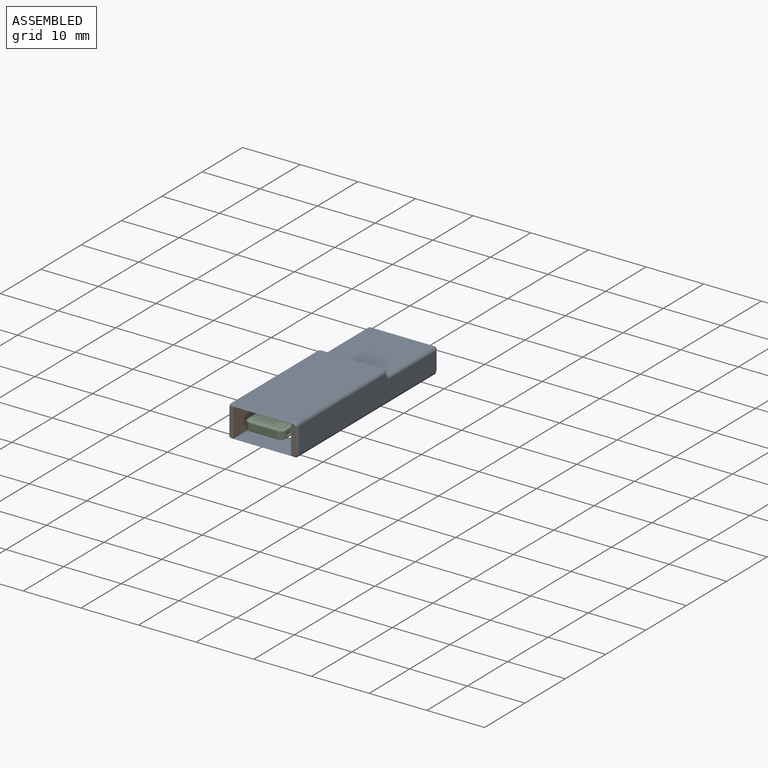
[diagram: assembled view]
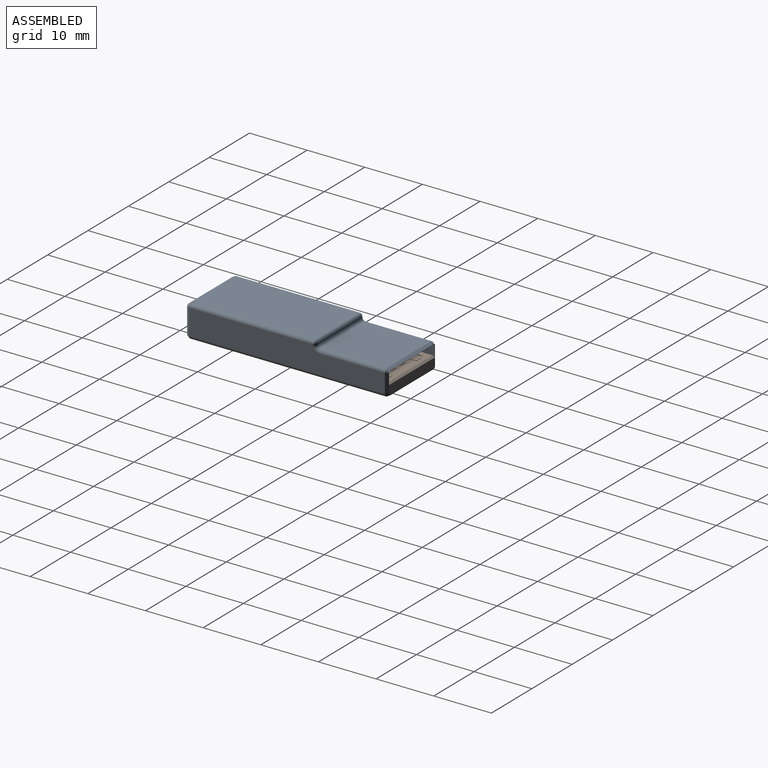
[diagram: assembled view, second angle]
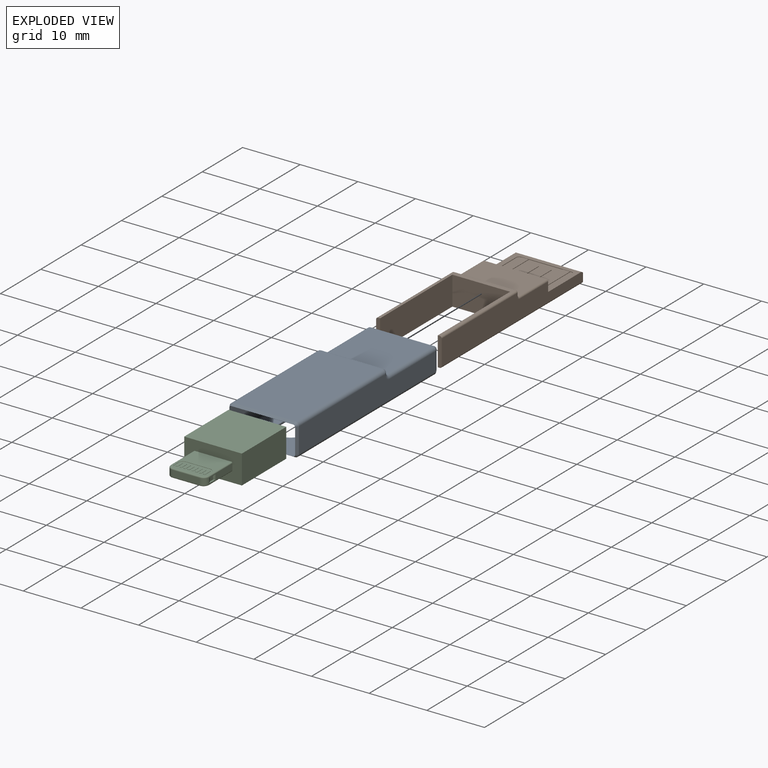
[diagram: exploded view]
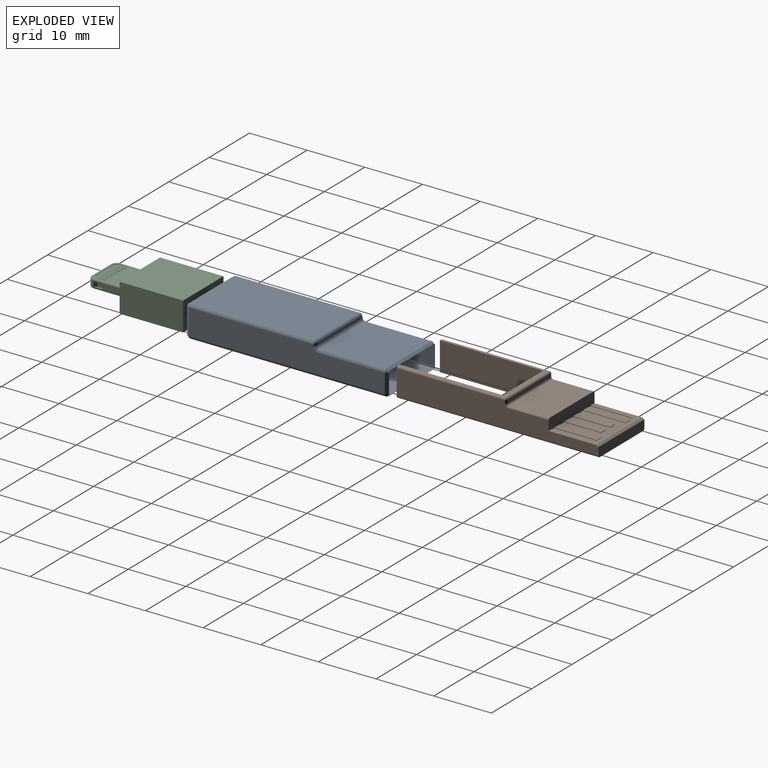
[diagram: exploded view, second angle]
ASSEMBLY  parts=3 mates=2
PART A: 66 faces, bbox 12x35x5.6 mm
  f0: plane 34x10.72mm, normal (0,0,-1), area 310.3mm2, adj f23,f24,f53,f61,f62,f63,f64,f65
  f1: plane 35x10.72mm, normal (0,0,1), area 321.1mm2, adj f2,f6,f44,f45,f62,f63,f64,f65
  f2: plane 11.42x3.92mm, normal (0,1,0), area 0.8mm2, adj f1,f25,f28,f29,f32,f38,f44,f45
  f3: plane 11.5x10.72mm, normal (0,0,1), area 123.3mm2, adj f9,f11,f17,f46
  f4: plane 10.72x0.13mm, normal (0,1,0), area 1.4mm2, adj f9,f10,f13,f22
  f5: plane 21.5x10.72mm, normal (0,0,1), area 230.5mm2, adj f10,f16,f19,f54
  f6: plane 11.42x5.05mm, normal (0,-1,0), area 0.8mm2, adj f1,f27,f28,f29,f37,f40,f44,f45
  f7: plane 34x4.35mm, normal (1,0,0), area 133.9mm2, adj f17,f19,f20,f24,f49,f57
  f8: plane 34x4.35mm, normal (-1,0,0), area 133.9mm2, adj f11,f12,f16,f23,f50,f58
  f9: cylinder r=0.5mm len=10.72mm, axis (1,0,0), area 8.4mm2, adj f3,f4,f12,f20
  f10: cylinder r=0.5mm len=10.72mm, axis (-1,0,0), area 8.4mm2, adj f4,f5,f15,f21
  f11: cylinder r=0.64mm len=11.5mm, axis (0,-1,0), area 11.6mm2, adj f3,f8,f12,f48
  f12: torus R=1.14mm, axis (1,0,0), area 1.2mm2, adj f8,f9,f11,f13,f14
  f13: cylinder r=0.64mm len=0.64mm, axis (0,0,1), area 0.1mm2, adj f4,f12,f15
  f14: bspline ~0.24x0.24mm, area 0mm2, adj f12,f15,f16
  f15: bspline ~0.79x0.64mm, area 0.5mm2, adj f10,f13,f14,f16
  f16: cylinder r=0.64mm len=21.5mm, axis (0,-1,0), area 21.6mm2, adj f5,f8,f14,f15,f56
  f17: cylinder r=0.64mm len=11.5mm, axis (0,1,0), area 11.6mm2, adj f3,f7,f20,f47
  f18: bspline ~0.24x0.24mm, area 0mm2, adj f19,f20,f21
  f19: cylinder r=0.64mm len=21.5mm, axis (0,1,0), area 21.6mm2, adj f5,f7,f18,f21,f55
  f20: torus R=1.14mm, axis (1,0,0), area 1.2mm2, adj f7,f9,f17,f18,f22
  f21: bspline ~0.79x0.64mm, area 0.5mm2, adj f10,f18,f19,f22
  f22: cylinder r=0.64mm len=0.64mm, axis (0,0,1), area 0.1mm2, adj f4,f20,f21
  f23: cylinder r=0.64mm len=34mm, axis (0,1,0), area 34.2mm2, adj f0,f8,f52,f60
  f24: cylinder r=0.64mm len=34mm, axis (0,-1,0), area 34.2mm2, adj f0,f7,f51,f59
  f25: plane 12x10.72mm, normal (0,0,-1), area 128.6mm2, adj f2,f30,f32,f38
  f26: plane 10.72x0.13mm, normal (0,-1,0), area 1.4mm2, adj f30,f31,f34,f43
  f27: plane 22x10.72mm, normal (0,0,-1), area 235.8mm2, adj f6,f31,f37,f40
  f28: plane 35x4.35mm, normal (-1,0,0), area 137.7mm2, adj f2,f6,f38,f40,f41,f45
  f29: plane 35x4.35mm, normal (1,0,0), area 137.7mm2, adj f2,f6,f32,f33,f37,f44
  f30: cylinder r=0.81mm len=10.72mm, axis (1,0,0), area 13.7mm2, adj f25,f26,f33,f41
  f31: cylinder r=0.18mm len=10.72mm, axis (-1,0,0), area 3.1mm2, adj f26,f27,f36,f42
  f32: cylinder r=0.33mm len=12mm, axis (0,-1,0), area 6.1mm2, adj f2,f25,f29,f33
  f33: torus R=1.14mm, axis (1,0,0), area 0.7mm2, adj f29,f30,f32,f34,f35
  f34: cylinder r=0.33mm len=0.32mm, axis (0,0,1), area 0mm2, adj f26,f33,f36
  f35: bspline ~0.12x0.12mm, area 0mm2, adj f33,f36,f37
  f36: bspline ~0.39x0.33mm, area 0.1mm2, adj f31,f34,f35,f37
  f37: cylinder r=0.33mm len=22mm, axis (0,-1,0), area 11.2mm2, adj f6,f27,f29,f35,f36
  f38: cylinder r=0.33mm len=12mm, axis (0,1,0), area 6.1mm2, adj f2,f25,f28,f41
  f39: bspline ~0.12x0.12mm, area 0mm2, adj f40,f41,f42
  f40: cylinder r=0.33mm len=22mm, axis (0,1,0), area 11.2mm2, adj f6,f27,f28,f39,f42
  f41: torus R=1.14mm, axis (1,0,0), area 0.7mm2, adj f28,f30,f38,f39,f43
  f42: bspline ~0.39x0.33mm, area 0.1mm2, adj f31,f39,f40,f43
  f43: cylinder r=0.33mm len=0.32mm, axis (0,0,1), area 0mm2, adj f26,f41,f42
  f44: cylinder r=0.33mm len=35mm, axis (0,1,0), area 17.9mm2, adj f1,f2,f6,f29
  f45: cylinder r=0.33mm len=35mm, axis (0,-1,0), area 17.9mm2, adj f1,f2,f6,f28
  f46: plane 10.72x0.5mm, normal (0,0.5,0.87), area 6.2mm2, adj f2,f3,f47,f48
  f47: cone r=0.35mm half-angle=30deg, axis (0,-1,0), area 0.4mm2, adj f2,f17,f46,f49
  f48: cone r=0.35mm half-angle=30deg, axis (0,-1,0), area 0.4mm2, adj f2,f11,f46,f50
  f49: plane 3.22x0.5mm, normal (0.87,0.5,0), area 1.9mm2, adj f2,f7,f47,f51
  f50: plane 3.22x0.5mm, normal (-0.87,0.5,0), area 1.9mm2, adj f2,f8,f48,f52
  f51: cone r=0.35mm half-angle=30deg, axis (0,-1,0), area 0.4mm2, adj f2,f24,f49,f53
  f52: cone r=0.35mm half-angle=30deg, axis (0,-1,0), area 0.4mm2, adj f2,f23,f50,f53
  f53: plane 10.72x0.5mm, normal (0,0.5,-0.87), area 6.2mm2, adj f0,f2,f51,f52
  f54: plane 10.72x0.5mm, normal (0,-0.5,0.87), area 6.2mm2, adj f5,f6,f55,f56
  f55: cone r=0.35mm half-angle=30deg, axis (0,1,0), area 0.4mm2, adj f6,f19,f54,f57
  f56: cone r=0.35mm half-angle=30deg, axis (0,1,0), area 0.4mm2, adj f6,f16,f54,f58
  f57: plane 4.35x0.5mm, normal (0.87,-0.5,0), area 2.5mm2, adj f6,f7,f55,f59
  f58: plane 4.35x0.5mm, normal (-0.87,-0.5,0), area 2.5mm2, adj f6,f8,f56,f60
  f59: cone r=0.35mm half-angle=30deg, axis (0,1,0), area 0.4mm2, adj f6,f24,f57,f61
  f60: cone r=0.35mm half-angle=30deg, axis (0,1,0), area 0.4mm2, adj f6,f23,f58,f61
  f61: plane 10.72x0.5mm, normal (0,-0.5,-0.87), area 6.2mm2, adj f0,f6,f59,f60
  f62: cylinder r=2.5mm len=5mm, axis (0,0,-1), area 2.5mm2, adj f0,f1,f63,f64
  f63: plane 6.9x0.32mm, normal (-1,0,0), area 2.2mm2, adj f0,f1,f62,f65
  f64: plane 6.9x0.32mm, normal (1,0,0), area 2.2mm2, adj f0,f1,f62,f65
  f65: cylinder r=2.5mm len=5mm, axis (0,0,-1), area 2.5mm2, adj f0,f1,f63,f64
PART B: 56 faces, bbox 11.4x35x5 mm
  f0: plane 5x0.69mm, normal (0,1,0), area 3.4mm2, adj f1,f2,f9,f40,f49,f54
  f1: plane 35x10.72mm, normal (0,0,-1), area 196.2mm2, adj f0,f12,f13,f39,f40,f41,f54,f55
  f2: plane 18.68x10.72mm, normal (0,0,1), area 21.2mm2, adj f0,f13,f39,f40,f41,f43,f44,f49
  f3: plane 10.72x7.03mm, normal (0,0,1), area 75.3mm2, adj f15,f42,f48,f53
  f4: plane 9.7x7.5mm, normal (0,0,1), area 39.5mm2, adj f5,f6,f7,f8,f16,f17,f18,f19
  f5: plane 0.66x0.11mm, normal (0,-1,0), area 0.1mm2, adj f4,f15,f21,f36
  f6: plane 1.31x0.11mm, normal (0,-1,0), area 0.1mm2, adj f4,f15,f32,f35
  f7: plane 1.31x0.11mm, normal (0,-1,0), area 0.1mm2, adj f4,f15,f23,f29
  f8: plane 1.01x0.11mm, normal (0,-1,0), area 0.1mm2, adj f4,f15,f25,f31
  f9: plane 35x4.35mm, normal (-1,0,0), area 119.8mm2, adj f0,f11,f12,f14,f15,f49,f51,f52
  f10: plane 35x4.35mm, normal (1,0,0), area 119.8mm2, adj f11,f12,f13,f14,f15,f44,f46,f47
  f11: plane 11.37x8.25mm, normal (0,0,1), area 21.1mm2, adj f9,f10,f14,f15,f17,f18,f19,f20
  f12: plane 11.37x1.69mm, normal (0,-1,0), area 19.2mm2, adj f1,f9,f10,f14,f54,f55
  f13: plane 5x0.69mm, normal (0,1,0), area 3.4mm2, adj f1,f2,f10,f39,f44,f55
  f14: plane 11.37x0.4mm, normal (0,-0.5,0.87), area 5.3mm2, adj f9,f10,f11,f12
  f15: plane 11.38x1.96mm, normal (0,-1,0), area 22.1mm2, adj f3,f5,f6,f7,f8,f9,f10,f11
  f16: plane 0.66x0.11mm, normal (0,-1,0), area 0.1mm2, adj f4,f15,f17,f27
  f17: plane 7x0.1mm, normal (1,0,0), area 0.7mm2, adj f4,f11,f16,f18
  f18: cylinder r=0.5mm len=0.5mm, axis (0,0,1), area 0.1mm2, adj f4,f11,f17,f19
  f19: plane 8.7x0.1mm, normal (0,1,0), area 0.9mm2, adj f4,f11,f18,f20
  f20: cylinder r=0.5mm len=0.5mm, axis (0,0,1), area 0.1mm2, adj f4,f11,f19,f21
  f21: plane 7x0.1mm, normal (-1,0,0), area 0.7mm2, adj f4,f5,f11,f20
  f22: plane 6.42x1.2mm, normal (0,0,1), area 7.7mm2, adj f15,f23,f24,f25
  f23: plane 6.41x0.1mm, normal (-1,0,0), area 0.6mm2, adj f4,f7,f22,f24
  f24: plane 1.2x0.1mm, normal (0,-1,0), area 0.1mm2, adj f4,f22,f23,f25
  f25: plane 6.41x0.1mm, normal (1,0,0), area 0.6mm2, adj f4,f8,f22,f24
  f26: plane 7.42x1.2mm, normal (0,0,1), area 8.9mm2, adj f15,f27,f28,f29
  f27: plane 7.41x0.1mm, normal (-1,0,0), area 0.7mm2, adj f4,f16,f26,f28
  f28: plane 1.2x0.1mm, normal (0,-1,0), area 0.1mm2, adj f4,f26,f27,f29
  f29: plane 7.41x0.1mm, normal (1,0,0), area 0.7mm2, adj f4,f7,f26,f28
  f30: plane 6.42x1.2mm, normal (0,0,1), area 7.7mm2, adj f15,f31,f32,f33
  f31: plane 6.41x0.1mm, normal (-1,0,0), area 0.6mm2, adj f4,f8,f30,f33
  f32: plane 6.41x0.1mm, normal (1,0,0), area 0.6mm2, adj f4,f6,f30,f33
  f33: plane 1.2x0.1mm, normal (0,-1,0), area 0.1mm2, adj f4,f30,f31,f32
  f34: plane 7.42x1.2mm, normal (0,0,1), area 8.9mm2, adj f15,f35,f36,f37
  f35: plane 7.41x0.1mm, normal (-1,0,0), area 0.7mm2, adj f4,f6,f34,f37
  f36: plane 7.41x0.1mm, normal (1,0,0), area 0.7mm2, adj f4,f5,f34,f37
  f37: plane 1.2x0.1mm, normal (0,-1,0), area 0.1mm2, adj f4,f34,f35,f36
  f38: plane 10.72x0.48mm, normal (0,-1,0), area 5.1mm2, adj f42,f43,f46,f51
  f39: plane 17.9x5mm, normal (-1,0,0), area 89.5mm2, adj f1,f2,f13,f41
  f40: plane 17.9x5mm, normal (1,0,0), area 89.5mm2, adj f0,f1,f2,f41
  f41: plane 10x5mm, normal (0,1,0), area 50mm2, adj f1,f2,f39,f40
  f42: cylinder r=0.33mm len=10.72mm, axis (1,0,0), area 5.5mm2, adj f3,f38,f47,f52
  f43: cylinder r=0.33mm len=10.72mm, axis (-1,0,0), area 5.5mm2, adj f2,f38,f45,f50
  f44: cylinder r=0.33mm len=18.68mm, axis (0,-1,0), area 9.5mm2, adj f2,f10,f13,f45
  f45: sphere r=0.33mm, area 0.2mm2, adj f43,f44,f46
  f46: cylinder r=0.33mm len=0.48mm, axis (0,0,1), area 0.2mm2, adj f10,f38,f45,f47
  f47: torus R=0.65mm, axis (-1,0,0), area 0.4mm2, adj f10,f42,f46,f48
  f48: cylinder r=0.33mm len=7.03mm, axis (0,-1,0), area 3.6mm2, adj f3,f10,f15,f47
  f49: cylinder r=0.33mm len=18.68mm, axis (0,1,0), area 9.5mm2, adj f0,f2,f9,f50
  f50: sphere r=0.33mm, area 0.2mm2, adj f43,f49,f51
  f51: cylinder r=0.33mm len=0.48mm, axis (0,0,-1), area 0.2mm2, adj f9,f38,f50,f52
  f52: torus R=0.65mm, axis (-1,0,0), area 0.4mm2, adj f9,f42,f51,f53
  f53: cylinder r=0.33mm len=7.03mm, axis (0,1,0), area 3.6mm2, adj f3,f9,f15,f52
  f54: cylinder r=0.33mm len=35mm, axis (0,-1,0), area 17.9mm2, adj f0,f1,f9,f12
  f55: cylinder r=0.33mm len=35mm, axis (0,1,0), area 17.9mm2, adj f1,f10,f12,f13
PART C: 209 faces, bbox 10x17.8x5.5 mm
  f0: cylinder r=2.5mm len=5mm, axis (0,0,1), area 6.7mm2, adj f1,f2,f3,f197,f199,f200,f201,f202
  f1: plane 4.94x0.8mm, normal (0,0,-1), area 3.8mm2, adj f0,f202,f208
  f2: plane 3x0.5mm, normal (0,0,-1), area 1mm2, adj f0,f204
  f3: plane 4.94x0.8mm, normal (0,0,-1), area 3.8mm2, adj f0,f201,f205
  f4: plane 5.7x1.1mm, normal (1,0,0), area 5.1mm2, adj f8,f173,f182,f183,f184,f185,f186,f195
  f5: plane 6.5x6.3mm, normal (0,0,-1), area 26.9mm2, adj f20,f21,f22,f23,f24,f25,f26,f27
  f6: plane 6.5x6.3mm, normal (0,0,1), area 26.9mm2, adj f11,f12,f13,f14,f15,f16,f17,f18
  f7: plane 5.7x1.1mm, normal (-1,0,0), area 5.1mm2, adj f10,f177,f178,f189,f191,f192,f195
  f8: cylinder r=1mm len=1.1mm, axis (0,0,-1), area 1.7mm2, adj f4,f9,f174,f181
  f9: plane 4.7x1.1mm, normal (0,1,0), area 5.2mm2, adj f8,f10,f175,f180
  f10: cylinder r=1mm len=1.1mm, axis (0,0,-1), area 1.7mm2, adj f7,f9,f176,f179,f188
  f11: plane 1x0.05mm, normal (-1,0,0), area 0.1mm2, adj f6,f12,f18,f19
  f12: cylinder r=0.75mm len=0.75mm, axis (0,0,1), area 0.1mm2, adj f6,f11,f13,f19
  f13: plane 4.2x0.05mm, normal (0,-1,0), area 0.2mm2, adj f6,f12,f14,f19
  f14: cylinder r=0.75mm len=0.75mm, axis (0,0,1), area 0.1mm2, adj f6,f13,f15,f19
  f15: plane 1x0.05mm, normal (1,0,0), area 0.1mm2, adj f6,f14,f16,f19
  f16: cylinder r=0.75mm len=0.75mm, axis (0,0,1), area 0.1mm2, adj f6,f15,f17,f19
  f17: plane 4.2x0.05mm, normal (0,1,0), area 0.2mm2, adj f6,f16,f18,f19
  f18: cylinder r=0.75mm len=0.75mm, axis (0,0,1), area 0.1mm2, adj f6,f11,f17,f19
  f19: plane 5.7x2.5mm, normal (0,0,1), area 9mm2, adj f11,f12,f13,f14,f15,f16,f17,f18
  f20: plane 1x0.05mm, normal (1,0,0), area 0mm2, adj f5,f21,f27,f28
  f21: cylinder r=0.75mm len=0.75mm, axis (0,0,-1), area 0.1mm2, adj f5,f20,f22,f28
  f22: plane 4.2x0.05mm, normal (0,-1,0), area 0.2mm2, adj f5,f21,f23,f28
  f23: cylinder r=0.75mm len=0.75mm, axis (0,0,-1), area 0.1mm2, adj f5,f22,f24,f28
  f24: plane 1x0.05mm, normal (-1,0,0), area 0mm2, adj f5,f23,f25,f28
  f25: cylinder r=0.75mm len=0.75mm, axis (0,0,-1), area 0.1mm2, adj f5,f24,f26,f28
  f26: plane 4.2x0.05mm, normal (0,1,0), area 0.2mm2, adj f5,f25,f27,f28
  f27: cylinder r=0.75mm len=0.75mm, axis (0,0,-1), area 0.1mm2, adj f5,f20,f26,f28
  f28: plane 5.7x2.5mm, normal (0,0,-1), area 9mm2, adj f20,f21,f22,f23,f24,f25,f26,f27
  f29: plane 1.5x0.42mm, normal (0,0,-1), area 0.6mm2, adj f30,f31,f32,f33,f34,f35,f36,f37
  f30: cylinder r=0.2mm len=0.2mm, axis (0,0,1), area 0mm2, adj f28,f29,f31,f32
  f31: plane 0.05x0.02mm, normal (0,1,0), area 0mm2, adj f28,f29,f30,f34
  f32: plane 1.1x0.05mm, normal (-1,0,0), area 0.1mm2, adj f28,f29,f30,f33
  f33: cylinder r=0.2mm len=0.2mm, axis (0,0,1), area 0mm2, adj f28,f29,f32,f35
  f34: cylinder r=0.2mm len=0.2mm, axis (0,0,1), area 0mm2, adj f28,f29,f31,f36
  f35: plane 0.05x0.02mm, normal (0,-1,0), area 0mm2, adj f28,f29,f33,f37
  f36: plane 1.1x0.05mm, normal (1,0,0), area 0.1mm2, adj f28,f29,f34,f37
  f37: cylinder r=0.2mm len=0.2mm, axis (0,0,1), area 0mm2, adj f28,f29,f35,f36
  f38: cylinder r=0.2mm len=0.2mm, axis (0,0,1), area 0mm2, adj f19,f39,f40,f46
  f39: plane 1.1x0.05mm, normal (1,0,0), area 0.1mm2, adj f19,f38,f41,f46
  f40: plane 0.05x0.02mm, normal (0,-1,0), area 0mm2, adj f19,f38,f42,f46
  f41: cylinder r=0.2mm len=0.2mm, axis (0,0,1), area 0mm2, adj f19,f39,f44,f46
  f42: cylinder r=0.2mm len=0.2mm, axis (0,0,1), area 0mm2, adj f19,f40,f43,f46
  f43: plane 1.1x0.05mm, normal (-1,0,0), area 0.1mm2, adj f19,f42,f45,f46
  f44: plane 0.05x0.02mm, normal (0,1,0), area 0mm2, adj f19,f41,f45,f46
  f45: cylinder r=0.2mm len=0.2mm, axis (0,0,1), area 0mm2, adj f19,f43,f44,f46
  f46: plane 1.5x0.42mm, normal (0,0,1), area 0.6mm2, adj f38,f39,f40,f41,f42,f43,f44,f45
  f47: plane 1.5x0.42mm, normal (0,0,-1), area 0.6mm2, adj f48,f49,f50,f51,f52,f53,f54,f55
  f48: plane 1.1x0.05mm, normal (1,0,0), area 0.1mm2, adj f28,f47,f49,f50
  f49: cylinder r=0.2mm len=0.2mm, axis (0,0,1), area 0mm2, adj f28,f47,f48,f52
  f50: cylinder r=0.2mm len=0.2mm, axis (0,0,1), area 0mm2, adj f28,f47,f48,f51
  f51: plane 0.05x0.02mm, normal (0,1,0), area 0mm2, adj f28,f47,f50,f53
  f52: plane 0.05x0.02mm, normal (0,-1,0), area 0mm2, adj f28,f47,f49,f54
  f53: cylinder r=0.2mm len=0.2mm, axis (0,0,1), area 0mm2, adj f28,f47,f51,f55
  f54: cylinder r=0.2mm len=0.2mm, axis (0,0,1), area 0mm2, adj f28,f47,f52,f55
  f55: plane 1.1x0.05mm, normal (-1,0,0), area 0.1mm2, adj f28,f47,f53,f54
  f56: plane 1.1x0.05mm, normal (-1,0,0), area 0.1mm2, adj f19,f57,f58,f64
  f57: cylinder r=0.2mm len=0.2mm, axis (0,0,1), area 0mm2, adj f19,f56,f59,f64
  f58: cylinder r=0.2mm len=0.2mm, axis (0,0,1), area 0mm2, adj f19,f56,f60,f64
  f59: plane 0.05x0.02mm, normal (0,-1,0), area 0mm2, adj f19,f57,f62,f64
  f60: plane 0.05x0.02mm, normal (0,1,0), area 0mm2, adj f19,f58,f61,f64
  f61: cylinder r=0.2mm len=0.2mm, axis (0,0,1), area 0mm2, adj f19,f60,f63,f64
  f62: cylinder r=0.2mm len=0.2mm, axis (0,0,1), area 0mm2, adj f19,f59,f63,f64
  f63: plane 1.1x0.05mm, normal (1,0,0), area 0.1mm2, adj f19,f61,f62,f64
  f64: plane 1.5x0.42mm, normal (0,0,1), area 0.6mm2, adj f56,f57,f58,f59,f60,f61,f62,f63
  f65: plane 1.5x0.42mm, normal (0,0,-1), area 0.6mm2, adj f66,f67,f68,f69,f70,f71,f72,f73
  f66: plane 1.1x0.05mm, normal (1,0,0), area 0.1mm2, adj f28,f65,f67,f68
  f67: cylinder r=0.2mm len=0.2mm, axis (0,0,1), area 0mm2, adj f28,f65,f66,f70
  f68: cylinder r=0.2mm len=0.2mm, axis (0,0,1), area 0mm2, adj f28,f65,f66,f69
  f69: plane 0.05x0.02mm, normal (0,1,0), area 0mm2, adj f28,f65,f68,f71
  f70: plane 0.05x0.02mm, normal (0,-1,0), area 0mm2, adj f28,f65,f67,f72
  f71: cylinder r=0.2mm len=0.2mm, axis (0,0,1), area 0mm2, adj f28,f65,f69,f73
  f72: cylinder r=0.2mm len=0.2mm, axis (0,0,1), area 0mm2, adj f28,f65,f70,f73
  f73: plane 1.1x0.05mm, normal (-1,0,0), area 0.1mm2, adj f28,f65,f71,f72
  f74: plane 1.1x0.05mm, normal (-1,0,0), area 0.1mm2, adj f19,f75,f76,f82
  f75: cylinder r=0.2mm len=0.2mm, axis (0,0,1), area 0mm2, adj f19,f74,f77,f82
  f76: cylinder r=0.2mm len=0.2mm, axis (0,0,1), area 0mm2, adj f19,f74,f78,f82
  f77: plane 0.05x0.02mm, normal (0,-1,0), area 0mm2, adj f19,f75,f80,f82
  f78: plane 0.05x0.02mm, normal (0,1,0), area 0mm2, adj f19,f76,f79,f82
  f79: cylinder r=0.2mm len=0.2mm, axis (0,0,1), area 0mm2, adj f19,f78,f81,f82
  f80: cylinder r=0.2mm len=0.2mm, axis (0,0,1), area 0mm2, adj f19,f77,f81,f82
  f81: plane 1.1x0.05mm, normal (1,0,0), area 0.1mm2, adj f19,f79,f80,f82
  f82: plane 1.5x0.42mm, normal (0,0,1), area 0.6mm2, adj f74,f75,f76,f77,f78,f79,f80,f81
  f83: plane 1.5x0.42mm, normal (0,0,-1), area 0.6mm2, adj f84,f85,f86,f87,f88,f89,f90,f91
  f84: plane 1.1x0.05mm, normal (1,0,0), area 0.1mm2, adj f28,f83,f85,f86
  f85: cylinder r=0.2mm len=0.2mm, axis (0,0,1), area 0mm2, adj f28,f83,f84,f88
  f86: cylinder r=0.2mm len=0.2mm, axis (0,0,1), area 0mm2, adj f28,f83,f84,f87
  f87: plane 0.05x0.02mm, normal (0,1,0), area 0mm2, adj f28,f83,f86,f89
  f88: plane 0.05x0.02mm, normal (0,-1,0), area 0mm2, adj f28,f83,f85,f90
  f89: cylinder r=0.2mm len=0.2mm, axis (0,0,1), area 0mm2, adj f28,f83,f87,f91
  f90: cylinder r=0.2mm len=0.2mm, axis (0,0,1), area 0mm2, adj f28,f83,f88,f91
  f91: plane 1.1x0.05mm, normal (-1,0,0), area 0.1mm2, adj f28,f83,f89,f90
  f92: plane 1.1x0.05mm, normal (-1,0,0), area 0.1mm2, adj f19,f93,f94,f100
  f93: cylinder r=0.2mm len=0.2mm, axis (0,0,1), area 0mm2, adj f19,f92,f95,f100
  f94: cylinder r=0.2mm len=0.2mm, axis (0,0,1), area 0mm2, adj f19,f92,f96,f100
  f95: plane 0.05x0.02mm, normal (0,-1,0), area 0mm2, adj f19,f93,f98,f100
  f96: plane 0.05x0.02mm, normal (0,1,0), area 0mm2, adj f19,f94,f97,f100
  f97: cylinder r=0.2mm len=0.2mm, axis (0,0,1), area 0mm2, adj f19,f96,f99,f100
  f98: cylinder r=0.2mm len=0.2mm, axis (0,0,1), area 0mm2, adj f19,f95,f99,f100
  f99: plane 1.1x0.05mm, normal (1,0,0), area 0.1mm2, adj f19,f97,f98,f100
  f100: plane 1.5x0.42mm, normal (0,0,1), area 0.6mm2, adj f92,f93,f94,f95,f96,f97,f98,f99
  f101: plane 1.5x0.42mm, normal (0,0,-1), area 0.6mm2, adj f102,f103,f104,f105,f106,f107,f108,f109
  f102: plane 1.1x0.05mm, normal (1,0,0), area 0.1mm2, adj f28,f101,f103,f104
  f103: cylinder r=0.2mm len=0.2mm, axis (0,0,1), area 0mm2, adj f28,f101,f102,f106
  f104: cylinder r=0.2mm len=0.2mm, axis (0,0,1), area 0mm2, adj f28,f101,f102,f105
  f105: plane 0.05x0.02mm, normal (0,1,0), area 0mm2, adj f28,f101,f104,f107
  f106: plane 0.05x0.02mm, normal (0,-1,0), area 0mm2, adj f28,f101,f103,f108
  f107: cylinder r=0.2mm len=0.2mm, axis (0,0,1), area 0mm2, adj f28,f101,f105,f109
  f108: cylinder r=0.2mm len=0.2mm, axis (0,0,1), area 0mm2, adj f28,f101,f106,f109
  f109: plane 1.1x0.05mm, normal (-1,0,0), area 0.1mm2, adj f28,f101,f107,f108
  f110: plane 1.1x0.05mm, normal (-1,0,0), area 0.1mm2, adj f19,f111,f112,f118
  f111: cylinder r=0.2mm len=0.2mm, axis (0,0,1), area 0mm2, adj f19,f110,f113,f118
  f112: cylinder r=0.2mm len=0.2mm, axis (0,0,1), area 0mm2, adj f19,f110,f114,f118
  f113: plane 0.05x0.02mm, normal (0,-1,0), area 0mm2, adj f19,f111,f116,f118
  f114: plane 0.05x0.02mm, normal (0,1,0), area 0mm2, adj f19,f112,f115,f118
  f115: cylinder r=0.2mm len=0.2mm, axis (0,0,1), area 0mm2, adj f19,f114,f117,f118
  f116: cylinder r=0.2mm len=0.2mm, axis (0,0,1), area 0mm2, adj f19,f113,f117,f118
  f117: plane 1.1x0.05mm, normal (1,0,0), area 0.1mm2, adj f19,f115,f116,f118
  f118: plane 1.5x0.42mm, normal (0,0,1), area 0.6mm2, adj f110,f111,f112,f113,f114,f115,f116,f117
  f119: plane 1.5x0.42mm, normal (0,0,-1), area 0.6mm2, adj f120,f121,f122,f123,f124,f125,f126,f127
  f120: plane 1.1x0.05mm, normal (1,0,0), area 0.1mm2, adj f28,f119,f121,f122
  f121: cylinder r=0.2mm len=0.2mm, axis (0,0,1), area 0mm2, adj f28,f119,f120,f124
  f122: cylinder r=0.2mm len=0.2mm, axis (0,0,1), area 0mm2, adj f28,f119,f120,f123
  f123: plane 0.05x0.02mm, normal (0,1,0), area 0mm2, adj f28,f119,f122,f125
  f124: plane 0.05x0.02mm, normal (0,-1,0), area 0mm2, adj f28,f119,f121,f126
  f125: cylinder r=0.2mm len=0.2mm, axis (0,0,1), area 0mm2, adj f28,f119,f123,f127
  f126: cylinder r=0.2mm len=0.2mm, axis (0,0,1), area 0mm2, adj f28,f119,f124,f127
  f127: plane 1.1x0.05mm, normal (-1,0,0), area 0.1mm2, adj f28,f119,f125,f126
  f128: plane 1.1x0.05mm, normal (-1,0,0), area 0.1mm2, adj f19,f129,f130,f136
  f129: cylinder r=0.2mm len=0.2mm, axis (0,0,1), area 0mm2, adj f19,f128,f131,f136
  f130: cylinder r=0.2mm len=0.2mm, axis (0,0,1), area 0mm2, adj f19,f128,f132,f136
  f131: plane 0.05x0.02mm, normal (0,-1,0), area 0mm2, adj f19,f129,f134,f136
  f132: plane 0.05x0.02mm, normal (0,1,0), area 0mm2, adj f19,f130,f133,f136
  f133: cylinder r=0.2mm len=0.2mm, axis (0,0,1), area 0mm2, adj f19,f132,f135,f136
  f134: cylinder r=0.2mm len=0.2mm, axis (0,0,1), area 0mm2, adj f19,f131,f135,f136
  f135: plane 1.1x0.05mm, normal (1,0,0), area 0.1mm2, adj f19,f133,f134,f136
  f136: plane 1.5x0.42mm, normal (0,0,1), area 0.6mm2, adj f128,f129,f130,f131,f132,f133,f134,f135
  f137: plane 1.5x0.42mm, normal (0,0,-1), area 0.6mm2, adj f138,f139,f140,f141,f142,f143,f144,f145
  f138: plane 1.1x0.05mm, normal (1,0,0), area 0.1mm2, adj f28,f137,f139,f140
  f139: cylinder r=0.2mm len=0.2mm, axis (0,0,1), area 0mm2, adj f28,f137,f138,f142
  f140: cylinder r=0.2mm len=0.2mm, axis (0,0,1), area 0mm2, adj f28,f137,f138,f141
  f141: plane 0.05x0.02mm, normal (0,1,0), area 0mm2, adj f28,f137,f140,f143
  f142: plane 0.05x0.02mm, normal (0,-1,0), area 0mm2, adj f28,f137,f139,f144
  f143: cylinder r=0.2mm len=0.2mm, axis (0,0,1), area 0mm2, adj f28,f137,f141,f145
  f144: cylinder r=0.2mm len=0.2mm, axis (0,0,1), area 0mm2, adj f28,f137,f142,f145
  f145: plane 1.1x0.05mm, normal (-1,0,0), area 0.1mm2, adj f28,f137,f143,f144
  f146: plane 1.1x0.05mm, normal (-1,0,0), area 0.1mm2, adj f19,f147,f148,f154
  f147: cylinder r=0.2mm len=0.2mm, axis (0,0,1), area 0mm2, adj f19,f146,f149,f154
  f148: cylinder r=0.2mm len=0.2mm, axis (0,0,1), area 0mm2, adj f19,f146,f150,f154
  f149: plane 0.05x0.02mm, normal (0,-1,0), area 0mm2, adj f19,f147,f152,f154
  f150: plane 0.05x0.02mm, normal (0,1,0), area 0mm2, adj f19,f148,f151,f154
  f151: cylinder r=0.2mm len=0.2mm, axis (0,0,1), area 0mm2, adj f19,f150,f153,f154
  f152: cylinder r=0.2mm len=0.2mm, axis (0,0,1), area 0mm2, adj f19,f149,f153,f154
  f153: plane 1.1x0.05mm, normal (1,0,0), area 0.1mm2, adj f19,f151,f152,f154
  f154: plane 1.5x0.42mm, normal (0,0,1), area 0.6mm2, adj f146,f147,f148,f149,f150,f151,f152,f153
  f155: plane 1.5x0.42mm, normal (0,0,-1), area 0.6mm2, adj f156,f157,f158,f159,f160,f161,f162,f163
  f156: plane 1.1x0.05mm, normal (1,0,0), area 0.1mm2, adj f28,f155,f157,f158
  f157: cylinder r=0.2mm len=0.2mm, axis (0,0,1), area 0mm2, adj f28,f155,f156,f160
  f158: cylinder r=0.2mm len=0.2mm, axis (0,0,1), area 0mm2, adj f28,f155,f156,f159
  f159: plane 0.05x0.02mm, normal (0,1,0), area 0mm2, adj f28,f155,f158,f161
  f160: plane 0.05x0.02mm, normal (0,-1,0), area 0mm2, adj f28,f155,f157,f162
  f161: cylinder r=0.2mm len=0.2mm, axis (0,0,1), area 0mm2, adj f28,f155,f159,f163
  f162: cylinder r=0.2mm len=0.2mm, axis (0,0,1), area 0mm2, adj f28,f155,f160,f163
  f163: plane 1.1x0.05mm, normal (-1,0,0), area 0.1mm2, adj f28,f155,f161,f162
  f164: plane 1.1x0.05mm, normal (-1,0,0), area 0.1mm2, adj f19,f165,f166,f172
  f165: cylinder r=0.2mm len=0.2mm, axis (0,0,1), area 0mm2, adj f19,f164,f167,f172
  f166: cylinder r=0.2mm len=0.2mm, axis (0,0,1), area 0mm2, adj f19,f164,f168,f172
  f167: plane 0.05x0.02mm, normal (0,-1,0), area 0mm2, adj f19,f165,f170,f172
  f168: plane 0.05x0.02mm, normal (0,1,0), area 0mm2, adj f19,f166,f169,f172
  f169: cylinder r=0.2mm len=0.2mm, axis (0,0,1), area 0mm2, adj f19,f168,f171,f172
  f170: cylinder r=0.2mm len=0.2mm, axis (0,0,1), area 0mm2, adj f19,f167,f171,f172
  f171: plane 1.1x0.05mm, normal (1,0,0), area 0.1mm2, adj f19,f169,f170,f172
  f172: plane 1.5x0.42mm, normal (0,0,1), area 0.6mm2, adj f164,f165,f166,f167,f168,f169,f170,f171
  f173: cylinder r=0.2mm len=5.7mm, axis (0,1,0), area 1.8mm2, adj f4,f5,f174,f195
  f174: torus R=0.8mm, axis (0,0,1), area 0.5mm2, adj f5,f8,f173,f175
  f175: cylinder r=0.2mm len=4.7mm, axis (-1,0,0), area 1.5mm2, adj f5,f9,f174,f176
  f176: torus R=0.8mm, axis (0,0,1), area 0.5mm2, adj f5,f10,f175,f177
  f177: cylinder r=0.2mm len=5.7mm, axis (0,-1,0), area 1.8mm2, adj f5,f7,f176,f195
  f178: cylinder r=0.2mm len=5.7mm, axis (0,1,0), area 1.8mm2, adj f6,f7,f179,f195
  f179: torus R=0.8mm, axis (0,0,1), area 0.5mm2, adj f6,f10,f178,f180
  f180: cylinder r=0.2mm len=4.7mm, axis (1,0,0), area 1.5mm2, adj f6,f9,f179,f181
  f181: torus R=0.8mm, axis (0,0,1), area 0.5mm2, adj f6,f8,f180,f182
  f182: cylinder r=0.2mm len=5.7mm, axis (0,-1,0), area 1.8mm2, adj f4,f6,f181,f195
  f183: plane 0.8x0.46mm, normal (0.89,-0.45,0), area 0.4mm2, adj f4,f185,f186,f187
  f184: plane 0.8x0.23mm, normal (0.71,0.71,0), area 0.3mm2, adj f4,f185,f186,f187
  f185: plane 1.44x0.23mm, normal (0,0,1), area 0.3mm2, adj f4,f183,f184,f187
  f186: plane 1.44x0.23mm, normal (0,0,-1), area 0.3mm2, adj f4,f183,f184,f187
  f187: plane 0.8x0.75mm, normal (1,0,0), area 0.6mm2, adj f183,f184,f185,f186
  f188: plane 0.8x0.5mm, normal (-0.89,-0.45,0), area 0.4mm2, adj f10,f190,f191,f192
  f189: plane 0.8x0.25mm, normal (-0.71,0.71,0), area 0.3mm2, adj f7,f190,f191,f192
  f190: plane 0.8x0.75mm, normal (-1,0,0), area 0.6mm2, adj f188,f189,f191,f192
  f191: plane 1.5x0.25mm, normal (0,0,1), area 0.3mm2, adj f7,f188,f189,f190
  f192: plane 1.5x0.25mm, normal (0,0,-1), area 0.3mm2, adj f7,f188,f189,f190
  f193: plane 11x5mm, normal (-1,0,0), area 55mm2, adj f195,f196,f197,f198
  f194: plane 11x5mm, normal (1,0,0), area 55mm2, adj f195,f196,f197,f198
  f195: plane 10x5mm, normal (0,1,0), area 40mm2, adj f4,f5,f6,f7,f173,f177,f178,f182
  f196: plane 11x10mm, normal (0,0,1), area 110mm2, adj f193,f194,f195,f198
  f197: plane 11x10mm, normal (0,0,-1), area 90.4mm2, adj f0,f193,f194,f195,f198
  f198: plane 10x5mm, normal (0,-1,0), area 50mm2, adj f193,f194,f196,f197
  f199: plane 3x0.5mm, normal (0,0,-1), area 1mm2, adj f0,f207
  f200: plane 5x0.8mm, normal (0,0,-1), area 4mm2, adj f0,f201,f202
  f201: plane 4.94x0.2mm, normal (0,-1,0), area 1mm2, adj f0,f3,f200
  f202: plane 4.94x0.2mm, normal (0,1,0), area 1mm2, adj f0,f1,f200
  f203: plane 4.39x0.8mm, normal (0,0,-1), area 3mm2, adj f0,f204,f205
  f204: plane 3x0.2mm, normal (0,-1,0), area 0.6mm2, adj f0,f2,f203
  f205: plane 4.39x0.2mm, normal (0,1,0), area 0.9mm2, adj f0,f3,f203
  f206: plane 4.39x0.8mm, normal (0,0,-1), area 3mm2, adj f0,f207,f208
  f207: plane 3x0.2mm, normal (0,1,0), area 0.6mm2, adj f0,f199,f206
  f208: plane 4.39x0.2mm, normal (0,-1,0), area 0.9mm2, adj f0,f1,f206
PLACE A t=(-8.72,8.1,-5.6)mm fixed
PLACE B rot(axis=(0,0,1),180deg) t=(-3.04,-26.9,-5.29)mm
PLACE C rot(axis=(0,0,1),180deg) t=(-5.37,-9,-3.54)mm
MATE fastened A.f6 <-> B.f13  axis (0,1,0) through (-14.08,-26.9,-5.29)mm
MATE slider A.f6 <-> C.f195  axis (0,-1,0) through (-8.72,-26.9,-5.29)mm
